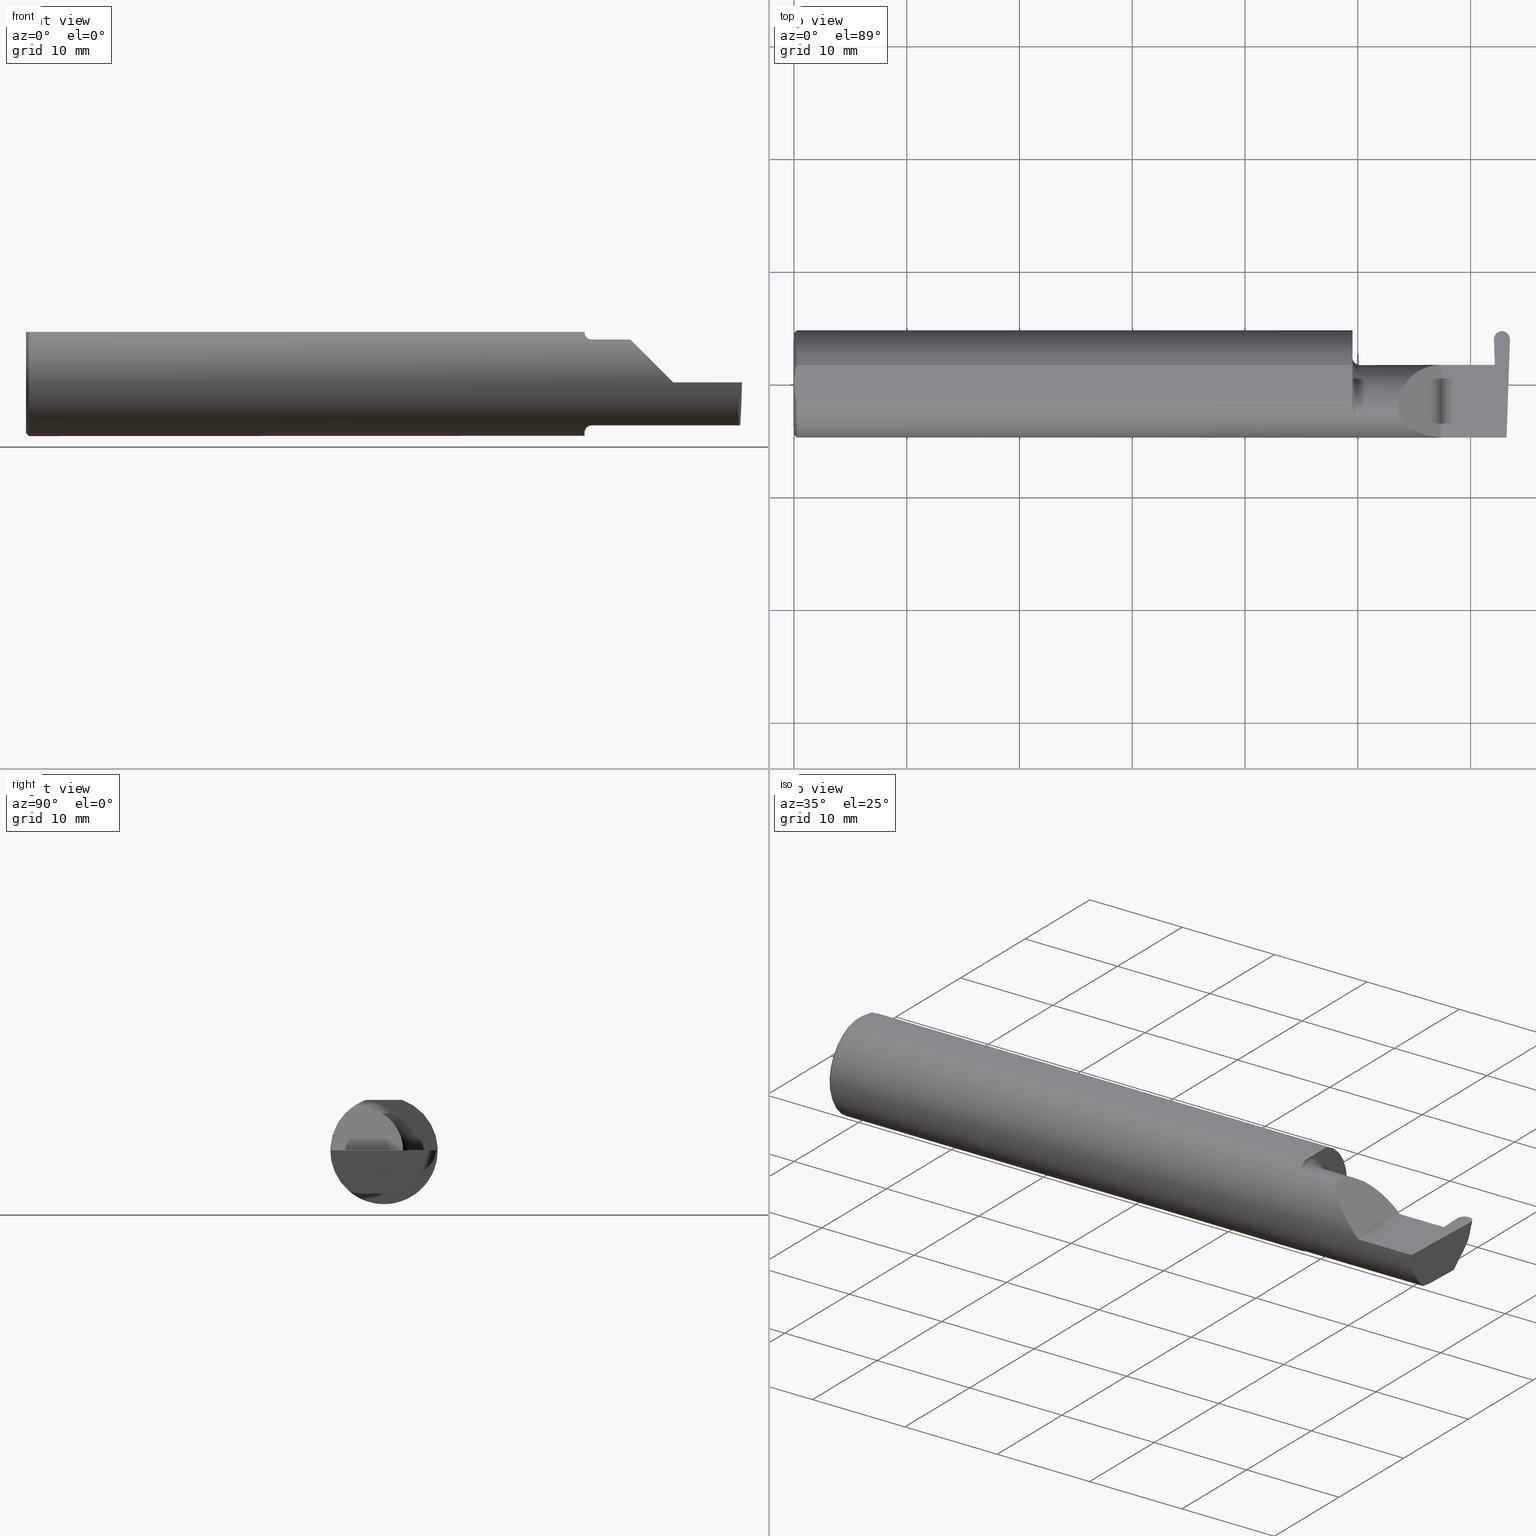
[diagram: canonical four-view strip — front | top / right | iso, engineering-drawing reading convention]
A machine part, canonical four-view strip (front | top / right | iso — engineering-drawing reading convention). The complete STEP part file that produces these views, byte-faithful:
ISO-10303-21;
HEADER;
FILE_DESCRIPTION (( 'STEP AP203' ),
    '1' );
FILE_NAME ('222140-GFR055-8.STEP',
    '2024-06-26T18:54:49',
    ( '' ),
    ( '' ),
    'SwSTEP 2.0',
    'SolidWorks 2024',
    '' );
FILE_SCHEMA (( 'CONFIG_CONTROL_DESIGN' ));
ENDSEC;

DATA;
#1 = APPROVAL_PERSON_ORGANIZATION ( #146, #490, #431 ) ;
#2 = CARTESIAN_POINT ( 'NONE',  ( 2.499950392650356346, 0.1545085540790380740, 0.0003624150208497695482 ) ) ;
#3 = ORIENTED_EDGE ( 'NONE', *, *, #486, .T. ) ;
#4 = CARTESIAN_POINT ( 'NONE',  ( 0.009999999999999346217, 0.000000000000000000, -0.1873499999999999888 ) ) ;
#5 = CARTESIAN_POINT ( 'NONE',  ( 0.000000000000000000, 0.000000000000000000, 0.000000000000000000 ) ) ;
#6 = ORIENTED_EDGE ( 'NONE', *, *, #413, .F. ) ;
#7 =( BOUNDED_CURVE ( )  B_SPLINE_CURVE ( 3, ( #456, #91, #196, #365 ),
 .UNSPECIFIED., .F., .F. ) 
 B_SPLINE_CURVE_WITH_KNOTS ( ( 4, 4 ),
 ( 0.8789888184544277783, 1.107026853503870978 ),
 .UNSPECIFIED. ) 
 CURVE ( )  GEOMETRIC_REPRESENTATION_ITEM ( )  RATIONAL_B_SPLINE_CURVE ( ( 1.000000000000000000, 0.9956712472009929815, 0.9956712472009929815, 1.000000000000000000 ) ) 
 REPRESENTATION_ITEM ( '' )  );
#8 = DIRECTION ( 'NONE',  ( 0.000000000000000000, 0.000000000000000000, 1.000000000000000000 ) ) ;
#9 = CC_DESIGN_APPROVAL ( #223, ( #697 ) ) ;
#10 = ORIENTED_EDGE ( 'NONE', *, *, #368, .T. ) ;
#11 = AXIS2_PLACEMENT_3D ( 'NONE', #137, #361, #679 ) ;
#12 = CARTESIAN_POINT ( 'NONE',  ( 2.472196486352602030, 0.1846500000000000363, 0.000000000000000000 ) ) ;
#13 = EDGE_LOOP ( 'NONE', ( #333, #259, #705, #136 ) ) ;
#14 = EDGE_CURVE ( 'NONE', #537, #219, #337, .T. ) ;
#15 = CARTESIAN_POINT ( 'NONE',  ( 2.471950000000000536, 0.1818703299733204493, -0.008554944679891261436 ) ) ;
#16 = CARTESIAN_POINT ( 'NONE',  ( 2.471950000000000536, 0.1722830110551551719, -0.03802004048799439290 ) ) ;
#17 = ORIENTED_EDGE ( 'NONE', *, *, #543, .F. ) ;
#18 = EDGE_CURVE ( 'NONE', #534, #537, #34, .T. ) ;
#19 = CARTESIAN_POINT ( 'NONE',  ( 2.496474746315712423, 0.1068850723125631674, -0.1034179792305871259 ) ) ;
#20 = ORIENTED_EDGE ( 'NONE', *, *, #251, .T. ) ;
#21 = AXIS2_PLACEMENT_3D ( 'NONE', #608, #399, #500 ) ;
#22 = CONICAL_SURFACE ( 'NONE', #693, 0.1773500000000005072, 0.7853981633974551624 ) ;
#23 = ORGANIZATION ( 'UNSPECIFIED', 'UNSPECIFIED', '' ) ;
#24 = DIRECTION ( 'NONE',  ( 1.000000000000000000, 0.000000000000000000, -0.000000000000000000 ) ) ;
#25 = CARTESIAN_POINT ( 'NONE',  ( 2.455608802696932713, 0.1715101730526972790, -0.03879287849045226499 ) ) ;
#26 = SECURITY_CLASSIFICATION_LEVEL ( 'unclassified' ) ;
#27 = CARTESIAN_POINT ( 'NONE',  ( 1.949999999999999956, -0.06851976604679065053, -0.1743704796142198643 ) ) ;
#28 = ADVANCED_FACE ( 'NONE', ( #454 ), #327, .T. ) ;
#29 = VERTEX_POINT ( 'NONE', #553 ) ;
#30 = CARTESIAN_POINT ( 'NONE',  ( 1.951829077486400221, -0.08839624499054647699, 0.1652742498708037466 ) ) ;
#31 = CARTESIAN_POINT ( 'NONE',  ( 2.202189699843948301, -0.1873500000000000443, 0.05781030015605120170 ) ) ;
#32 = CC_DESIGN_PERSON_AND_ORGANIZATION_ASSIGNMENT ( #260, #203, ( #701 ) ) ;
#33 = ORIENTED_EDGE ( 'NONE', *, *, #119, .T. ) ;
#34 =( BOUNDED_CURVE ( )  B_SPLINE_CURVE ( 3, ( #498, #235, #672, #445 ),
 .UNSPECIFIED., .F., .T. ) 
 B_SPLINE_CURVE_WITH_KNOTS ( ( 4, 4 ),
 ( 6.199081184676152212, 7.797674339294876411 ),
 .UNSPECIFIED. ) 
 CURVE ( )  GEOMETRIC_REPRESENTATION_ITEM ( )  RATIONAL_B_SPLINE_CURVE ( ( 1.000000000000000000, 0.7981407609938082626, 0.7981407609938082626, 1.000000000000000000 ) ) 
 REPRESENTATION_ITEM ( '' )  );
#35 = CARTESIAN_POINT ( 'NONE',  ( 1.965004157323697598, -0.1137044537483316436, 0.1489098419202428414 ) ) ;
#36 = DIRECTION ( 'NONE',  ( 0.01806679408117481400, 0.000000000000000000, -0.9998367821557817559 ) ) ;
#37 = ORIENTED_EDGE ( 'NONE', *, *, #299, .F. ) ;
#38 = DIRECTION ( 'NONE',  ( 1.000000000000000000, 3.456985211662611914E-17, 0.000000000000000000 ) ) ;
#39 = CARTESIAN_POINT ( 'NONE',  ( 2.113883229301068312, -0.1172600179964003175, 0.1461167706989304760 ) ) ;
#40 = VERTEX_POINT ( 'NONE', #665 ) ;
#41 = EDGE_CURVE ( 'NONE', #509, #106, #103, .T. ) ;
#42 = DIRECTION ( 'NONE',  ( 1.000000000000000000, 0.000000000000000000, 0.000000000000000000 ) ) ;
#43 = DIRECTION ( 'NONE',  ( 0.000000000000000000, -0.3090169943749481729, -0.9510565162951533091 ) ) ;
#44 = ORIENTED_EDGE ( 'NONE', *, *, #583, .F. ) ;
#45 = AXIS2_PLACEMENT_3D ( 'NONE', #234, #630, #189 ) ;
#46 = LINE ( 'NONE', #82, #481 ) ;
#47 = ORIENTED_EDGE ( 'NONE', *, *, #165, .T. ) ;
#48 = CARTESIAN_POINT ( 'NONE',  ( 2.443917087302114766, 0.1556210691174950977, 0.000000000000000000 ) ) ;
#49 = DIRECTION ( 'NONE',  ( -0.000000000000000000, 1.000000000000000000, -0.000000000000000000 ) ) ;
#50 = ORIENTED_EDGE ( 'NONE', *, *, #257, .T. ) ;
#51 = DIRECTION ( 'NONE',  ( 0.000000000000000000, 0.000000000000000000, -1.000000000000000000 ) ) ;
#52 = LINE ( 'NONE', #478, #658 ) ;
#53 = ORIENTED_EDGE ( 'NONE', *, *, #188, .T. ) ;
#54 = DATE_AND_TIME ( #96, #530 ) ;
#55 = DIRECTION ( 'NONE',  ( 0.000000000000000000, 0.000000000000000000, -1.000000000000000000 ) ) ;
#56 = ORIENTED_EDGE ( 'NONE', *, *, #347, .T. ) ;
#57 = EDGE_CURVE ( 'NONE', #606, #641, #168, .T. ) ;
#58 =( NAMED_UNIT ( * ) PLANE_ANGLE_UNIT ( ) SI_UNIT ( $, .RADIAN. ) );
#59 = CARTESIAN_POINT ( 'NONE',  ( 1.974999999999999867, -0.1172600179964006784, 0.1461167706989303650 ) ) ;
#60 = ORIENTED_EDGE ( 'NONE', *, *, #236, .T. ) ;
#61 = PERSON_AND_ORGANIZATION_ROLE ( 'classification_officer' ) ;
#62 = EDGE_CURVE ( 'NONE', #40, #501, #559, .T. ) ;
#63 = FACE_OUTER_BOUND ( 'NONE', #479, .T. ) ;
#64 = ORIENTED_EDGE ( 'NONE', *, *, #18, .F. ) ;
#65 = CARTESIAN_POINT ( 'NONE',  ( 2.447024025498200750, 0.06664999999999991764, 0.000000000000000000 ) ) ;
#66 = CARTESIAN_POINT ( 'NONE',  ( 2.488291197303068802, 0.1715101730526979174, -0.03879287849045171682 ) ) ;
#67 = AXIS2_PLACEMENT_3D ( 'NONE', #206, #369, #535 ) ;
#68 = DIRECTION ( 'NONE',  ( 1.000000000000000000, 0.000000000000000000, -0.000000000000000000 ) ) ;
#69 = ORIENTED_EDGE ( 'NONE', *, *, #342, .F. ) ;
#70 = EDGE_CURVE ( 'NONE', #476, #110, #95, .T. ) ;
#71 = CARTESIAN_POINT ( 'NONE',  ( 0.001616639753276218755, 0.03405189565400963680, 0.1763499999999999235 ) ) ;
#72 = ORIENTED_EDGE ( 'NONE', *, *, #694, .T. ) ;
#73 = FACE_OUTER_BOUND ( 'NONE', #595, .T. ) ;
#74 = CARTESIAN_POINT ( 'NONE',  ( 2.446346361333295416, 0.1274799371216592259, -0.08282311442149087322 ) ) ;
#75 = DATE_TIME_ROLE ( 'creation_date' ) ;
#76 = CARTESIAN_POINT ( 'NONE',  ( 2.471950000000000536, 0.1818703299733204493, -0.008554944679891261436 ) ) ;
#77 = ORIENTED_EDGE ( 'NONE', *, *, #241, .T. ) ;
#78 = CARTESIAN_POINT ( 'NONE',  ( 0.000000000000000000, 0.000000000000000000, -0.1773500000000005072 ) ) ;
#79 = ORIENTED_EDGE ( 'NONE', *, *, #295, .F. ) ;
#80 = CALENDAR_DATE ( 2024, 26, 6 ) ;
#81 = CARTESIAN_POINT ( 'NONE',  ( 1.972161949849307927, -0.1172600179964061184, 0.1461167706989260073 ) ) ;
#82 = CARTESIAN_POINT ( 'NONE',  ( 2.733184360054361939, -0.08335000000000006293, -0.1500000000000000500 ) ) ;
#83 = EDGE_LOOP ( 'NONE', ( #198, #657, #366, #229 ) ) ;
#84 = VECTOR ( 'NONE', #175, 39.37007874015748143 ) ;
#85 = VECTOR ( 'NONE', #417, 39.37007874015748143 ) ;
#86 = AXIS2_PLACEMENT_3D ( 'NONE', #226, #338, #442 ) ;
#87 = CC_DESIGN_APPROVAL ( #490, ( #701 ) ) ;
#88 = DIRECTION ( 'NONE',  ( 0.000000000000000000, 0.000000000000000000, -1.000000000000000000 ) ) ;
#89 = EDGE_LOOP ( 'NONE', ( #307, #426, #451, #156, #406 ) ) ;
#90 = CARTESIAN_POINT ( 'NONE',  ( 2.486959146249366537, -0.1623470442677541203, -0.1099340280425339100 ) ) ;
#91 = CARTESIAN_POINT ( 'NONE',  ( 2.488245243745037527, -0.1061291577212408743, -0.1486999626928446339 ) ) ;
#92 = ORIENTED_EDGE ( 'NONE', *, *, #57, .F. ) ;
#93 = CARTESIAN_POINT ( 'NONE',  ( 1.949999999999999956, 0.06655862405286420980, -0.005234924505380325437 ) ) ;
#94 = ORIENTED_EDGE ( 'NONE', *, *, #648, .T. ) ;
#95 = CIRCLE ( 'NONE', #182, 0.1873499999999999888 ) ;
#96 = CALENDAR_DATE ( 2024, 26, 6 ) ;
#97 = ADVANCED_FACE ( 'NONE', ( #611 ), #120, .F. ) ;
#98 = AXIS2_PLACEMENT_3D ( 'NONE', #589, #99, #204 ) ;
#99 = DIRECTION ( 'NONE',  ( -1.000000000000000000, -3.456985211662611914E-17, -0.000000000000000000 ) ) ;
#100 = EDGE_LOOP ( 'NONE', ( #69, #637, #186, #212, #272, #44, #629, #582, #72, #378, #411, #191, #586 ) ) ;
#101 = DIRECTION ( 'NONE',  ( -3.456985211662611914E-17, 1.000000000000000000, 0.000000000000000000 ) ) ;
#102 = ORIENTED_EDGE ( 'NONE', *, *, #236, .F. ) ;
#103 =( BOUNDED_CURVE ( )  B_SPLINE_CURVE ( 3, ( #122, #283, #496, #222 ),
 .UNSPECIFIED., .F., .F. ) 
 B_SPLINE_CURVE_WITH_KNOTS ( ( 4, 4 ),
 ( 3.159045946109734437, 4.694935687864696838 ),
 .UNSPECIFIED. ) 
 CURVE ( )  GEOMETRIC_REPRESENTATION_ITEM ( )  RATIONAL_B_SPLINE_CURVE ( ( 1.000000000000000000, 0.8128932002257782674, 0.8128932002257782674, 1.000000000000000000 ) ) 
 REPRESENTATION_ITEM ( '' )  );
#104 = DIRECTION ( 'NONE',  ( 1.000000000000000000, 0.000000000000000000, 0.000000000000000000 ) ) ;
#105 = DIRECTION ( 'NONE',  ( -0.01806954526206910883, 0.01744955702544858864, 0.9996844524616943506 ) ) ;
#106 = VERTEX_POINT ( 'NONE', #171 ) ;
#107 = APPROVAL_PERSON_ORGANIZATION ( #683, #223, #604 ) ;
#108 = DIRECTION ( 'NONE',  ( -1.000000000000000000, 0.000000000000000000, 1.224646799147353947E-16 ) ) ;
#109 = LINE ( 'NONE', #161, #218 ) ;
#110 = VERTEX_POINT ( 'NONE', #395 ) ;
#111 = APPROVAL_PERSON_ORGANIZATION ( #438, #115, #278 ) ;
#112 = EDGE_CURVE ( 'NONE', #219, #606, #245, .T. ) ;
#113 = CARTESIAN_POINT ( 'NONE',  ( 1.949999999999999956, 0.1873499999999998222, 0.1763499999999999235 ) ) ;
#114 = EDGE_LOOP ( 'NONE', ( #311, #253, #363, #3 ) ) ;
#115 = APPROVAL ( #297, 'UNSPECIFIED' ) ;
#116 = EDGE_CURVE ( 'NONE', #529, #164, #634, .T. ) ;
#117 = DIRECTION ( 'NONE',  ( -1.000000000000000000, -0.000000000000000000, -0.000000000000000000 ) ) ;
#118 = CARTESIAN_POINT ( 'NONE',  ( 2.449781798287666845, -0.08334999999999999354, -0.1500000000000000500 ) ) ;
#119 = EDGE_CURVE ( 'NONE', #208, #598, #631, .T. ) ;
#120 = PLANE ( 'NONE',  #480 ) ;
#121 = CARTESIAN_POINT ( 'NONE',  ( 0.000000000000000000, 0.01880691362239451242, 0.1763499999999999235 ) ) ;
#122 = CARTESIAN_POINT ( 'NONE',  ( 2.449781798287666845, -0.08334999999999999354, -0.1500000000000000500 ) ) ;
#123 = ORIENTED_EDGE ( 'NONE', *, *, #18, .T. ) ;
#124 = PLANE ( 'NONE',  #317 ) ;
#125 = EDGE_CURVE ( 'NONE', #625, #201, #190, .T. ) ;
#126 = ORIENTED_EDGE ( 'NONE', *, *, #112, .F. ) ;
#127 = PERSON_AND_ORGANIZATION ( #210, #23 ) ;
#128 = AXIS2_PLACEMENT_3D ( 'NONE', #644, #700, #421 ) ;
#129 = ADVANCED_FACE ( 'NONE', ( #471 ), #141, .T. ) ;
#130 = CARTESIAN_POINT ( 'NONE',  ( 0.000000000000000000, 0.01880691362239451242, 0.1763499999999999235 ) ) ;
#131 = CARTESIAN_POINT ( 'NONE',  ( 0.000000000000000000, 0.000000000000000000, 0.000000000000000000 ) ) ;
#132 = DATE_AND_TIME ( #570, #360 ) ;
#133 = CC_DESIGN_PERSON_AND_ORGANIZATION_ASSIGNMENT ( #127, #660, ( #670 ) ) ;
#134 = CARTESIAN_POINT ( 'NONE',  ( 1.950358271039143165, -0.07873626113568077400, -0.1700887912276895508 ) ) ;
#135 = CARTESIAN_POINT ( 'NONE',  ( 2.470340804352568753, 0.1370935646770005678, -0.05575375471034092756 ) ) ;
#136 = ORIENTED_EDGE ( 'NONE', *, *, #642, .F. ) ;
#137 = CARTESIAN_POINT ( 'NONE',  ( 1.949999999999999956, 0.1873499999999999055, 0.000000000000000000 ) ) ;
#138 = CARTESIAN_POINT ( 'NONE',  ( 2.449666718533190846, 0.06409798100084941608, -0.1462050705423014185 ) ) ;
#139 = VERTEX_POINT ( 'NONE', #138 ) ;
#140 = FACE_OUTER_BOUND ( 'NONE', #522, .T. ) ;
#141 = CYLINDRICAL_SURFACE ( 'NONE', #356, 0.02799999999999998671 ) ;
#142 = ORIENTED_EDGE ( 'NONE', *, *, #202, .F. ) ;
#143 = CARTESIAN_POINT ( 'NONE',  ( 1.956304331342286762, -0.1022198306720689676, -0.1570962426853819427 ) ) ;
#144 = CARTESIAN_POINT ( 'NONE',  ( 2.499982912697886750, 0.1556210691174950700, 0.000000000000000000 ) ) ;
#145 = ORIENTED_EDGE ( 'NONE', *, *, #62, .F. ) ;
#146 = PERSON_AND_ORGANIZATION ( #210, #23 ) ;
#147 = CARTESIAN_POINT ( 'NONE',  ( 2.489315391880043915, -0.07483390797619576817, -0.1500000000000000500 ) ) ;
#148 = ORIENTED_EDGE ( 'NONE', *, *, #197, .T. ) ;
#149 = ADVANCED_FACE ( 'NONE', ( #355 ), #22, .T. ) ;
#150 = CARTESIAN_POINT ( 'NONE',  ( 0.009999999999999346217, 0.000000000000000000, 0.000000000000000000 ) ) ;
#151 = AXIS2_PLACEMENT_3D ( 'NONE', #379, #599, #588 ) ;
#152 = FACE_OUTER_BOUND ( 'NONE', #83, .T. ) ;
#153 = EDGE_LOOP ( 'NONE', ( #518, #123, #320, #370, #437, #102, #17, #666, #489 ) ) ;
#154 = DIRECTION ( 'NONE',  ( -1.000000000000000000, -0.000000000000000000, -0.000000000000000000 ) ) ;
#155 = ADVANCED_FACE ( 'NONE', ( #467 ), #349, .F. ) ;
#156 = ORIENTED_EDGE ( 'NONE', *, *, #409, .T. ) ;
#157 = DIRECTION ( 'NONE',  ( 0.9992386149554828290, 0.03489418134010773692, 0.01745240643728358798 ) ) ;
#158 = CARTESIAN_POINT ( 'NONE',  ( 0.000000000000000000, -0.01880691362239451242, 0.1763499999999999235 ) ) ;
#159 = ADVANCED_FACE ( 'NONE', ( #405 ), #252, .F. ) ;
#160 = ORIENTED_EDGE ( 'NONE', *, *, #57, .T. ) ;
#161 = CARTESIAN_POINT ( 'NONE',  ( 2.470340804352568309, 0.1637231471332648569, -0.06440623055283947740 ) ) ;
#162 = ORIENTED_EDGE ( 'NONE', *, *, #281, .T. ) ;
#163 = CARTESIAN_POINT ( 'NONE',  ( 2.443960049305725857, 0.1543907983005533280, 0.000000000000000000 ) ) ;
#164 = VERTEX_POINT ( 'NONE', #696 ) ;
#165 = EDGE_CURVE ( 'NONE', #430, #457, #352, .T. ) ;
#166 = CARTESIAN_POINT ( 'NONE',  ( 2.497553638666705655, 0.1274799371216592259, -0.08282311442149083158 ) ) ;
#167 = ORIENTED_EDGE ( 'NONE', *, *, #368, .F. ) ;
#168 =( BOUNDED_CURVE ( )  B_SPLINE_CURVE ( 3, ( #16, #66, #443, #166 ),
 .UNSPECIFIED., .F., .T. ) 
 B_SPLINE_CURVE_WITH_KNOTS ( ( 4, 4 ),
 ( 3.157953889688667193, 4.726229945297544255 ),
 .UNSPECIFIED. ) 
 CURVE ( )  GEOMETRIC_REPRESENTATION_ITEM ( )  RATIONAL_B_SPLINE_CURVE ( ( 1.000000000000000000, 0.8053315133011027527, 0.8053315133011027527, 1.000000000000000000 ) ) 
 REPRESENTATION_ITEM ( '' )  );
#169 = CARTESIAN_POINT ( 'NONE',  ( 2.472196486352602030, 0.1846500000000000363, 0.000000000000000000 ) ) ;
#170 = VECTOR ( 'NONE', #325, 39.37007874015748143 ) ;
#171 = CARTESIAN_POINT ( 'NONE',  ( 2.447118648061411772, 0.06655862405286416816, -0.005234924505382331644 ) ) ;
#172 = VECTOR ( 'NONE', #261, 39.37007874015748143 ) ;
#173 = VECTOR ( 'NONE', #401, 39.37007874015748854 ) ;
#174 = CARTESIAN_POINT ( 'NONE',  ( 0.005155213631852355663, 0.04890080824240217866, 0.1763499999999999235 ) ) ;
#175 = DIRECTION ( 'NONE',  ( 1.000000000000000000, -0.000000000000000000, -0.000000000000000000 ) ) ;
#176 = DIRECTION ( 'NONE',  ( 1.000000000000000000, -0.000000000000000000, -0.000000000000000000 ) ) ;
#177 = ORIENTED_EDGE ( 'NONE', *, *, #347, .F. ) ;
#178 = EDGE_CURVE ( 'NONE', #40, #139, #689, .T. ) ;
#179 = COORDINATED_UNIVERSAL_TIME_OFFSET ( 8, 0, .BEHIND. ) ;
#180 = PLANE ( 'NONE',  #269 ) ;
#181 = CARTESIAN_POINT ( 'NONE',  ( 2.113883229301068312, -0.1172600179964003175, 0.1461167706989304760 ) ) ;
#182 = AXIS2_PLACEMENT_3D ( 'NONE', #668, #563, #290 ) ;
#183 = DESIGN_CONTEXT ( 'detailed design', #526, 'design' ) ;
#184 = CARTESIAN_POINT ( 'NONE',  ( 2.437903374698175529, 0.06664999999999991764, 0.000000000000000000 ) ) ;
#185 = CARTESIAN_POINT ( 'NONE',  ( -0.001039370078740541395, 0.1846500000000000363, 0.000000000000000000 ) ) ;
#186 = ORIENTED_EDGE ( 'NONE', *, *, #543, .T. ) ;
#187 = COORDINATED_UNIVERSAL_TIME_OFFSET ( 8, 0, .BEHIND. ) ;
#188 = EDGE_CURVE ( 'NONE', #164, #208, #461, .T. ) ;
#189 = DIRECTION ( 'NONE',  ( 0.000000000000000000, -1.000000000000000000, 0.000000000000000000 ) ) ;
#190 = LINE ( 'NONE', #144, #574 ) ;
#191 = ORIENTED_EDGE ( 'NONE', *, *, #568, .F. ) ;
#192 = CARTESIAN_POINT ( 'NONE',  ( 1.956287624083520305, -0.1021858045380145824, 0.1571187174372875861 ) ) ;
#193 = CARTESIAN_POINT ( 'NONE',  ( 2.155331797197863608, 0.06665000000000002867, 0.1046682028021359151 ) ) ;
#194 = ORIENTED_EDGE ( 'NONE', *, *, #288, .T. ) ;
#195 = LINE ( 'NONE', #408, #439 ) ;
#196 = CARTESIAN_POINT ( 'NONE',  ( 2.488618975064261996, -0.09477667630339420279, -0.1500000000000000500 ) ) ;
#197 = EDGE_CURVE ( 'NONE', #346, #331, #7, .T. ) ;
#198 = ORIENTED_EDGE ( 'NONE', *, *, #583, .T. ) ;
#199 = APPROVAL_STATUS ( 'not_yet_approved' ) ;
#200 = CARTESIAN_POINT ( 'NONE',  ( 0.000000000000000000, -0.01880691362239451242, 0.1763499999999999235 ) ) ;
#201 = VERTEX_POINT ( 'NONE', #585 ) ;
#202 = EDGE_CURVE ( 'NONE', #106, #29, #410, .T. ) ;
#203 = PERSON_AND_ORGANIZATION_ROLE ( 'creator' ) ;
#204 = DIRECTION ( 'NONE',  ( 3.456985211662611914E-17, -1.000000000000000000, 0.000000000000000000 ) ) ;
#205 = VERTEX_POINT ( 'NONE', #528 ) ;
#206 = CARTESIAN_POINT ( 'NONE',  ( 0.000000000000000000, 0.000000000000000000, 0.000000000000000000 ) ) ;
#207 = CARTESIAN_POINT ( 'NONE',  ( 2.443917087302114766, 0.1556210691174950977, 0.000000000000000000 ) ) ;
#208 = VERTEX_POINT ( 'NONE', #624 ) ;
#209 = EDGE_CURVE ( 'NONE', #331, #509, #46, .T. ) ;
#210 = PERSON ( 'UNSPECIFIED', 'UNSPECIFIED', 'UNSPECIFIED', ('UNSPECIFIED'), ('UNSPECIFIED'), ('UNSPECIFIED') ) ;
#211 = DIRECTION ( 'NONE',  ( -1.000000000000000000, -3.456985211662611914E-17, -0.000000000000000000 ) ) ;
#212 = ORIENTED_EDGE ( 'NONE', *, *, #116, .T. ) ;
#213 = DIRECTION ( 'NONE',  ( -1.224646799147353947E-16, 0.000000000000000000, -1.000000000000000000 ) ) ;
#214 = DIRECTION ( 'NONE',  ( -1.000000000000000000, -0.000000000000000000, -0.000000000000000000 ) ) ;
#215 = PRODUCT_DEFINITION_SHAPE ( 'NONE', 'NONE',  #701 ) ;
#216 = ORIENTED_EDGE ( 'NONE', *, *, #197, .F. ) ;
#217 = CARTESIAN_POINT ( 'NONE',  ( 2.471950000000000536, 0.1722830110551551719, -0.03802004048799439290 ) ) ;
#218 = VECTOR ( 'NONE', #276, 39.37007874015748143 ) ;
#219 = VERTEX_POINT ( 'NONE', #621 ) ;
#220 = ADVANCED_FACE ( 'NONE', ( #300 ), #303, .F. ) ;
#221 = CARTESIAN_POINT ( 'NONE',  ( 2.499939950694276103, 0.1543907983005533280, 0.000000000000000000 ) ) ;
#222 = CARTESIAN_POINT ( 'NONE',  ( 2.447118648061411772, 0.06655862405286416816, -0.005234924505382331644 ) ) ;
#223 = APPROVAL ( #510, 'UNSPECIFIED' ) ;
#224 = LINE ( 'NONE', #504, #659 ) ;
#225 = DIRECTION ( 'NONE',  ( 0.000000000000000000, -0.7071067811865433539, -0.7071067811865515695 ) ) ;
#226 = CARTESIAN_POINT ( 'NONE',  ( 0.000000000000000000, 0.000000000000000000, 0.000000000000000000 ) ) ;
#227 = VECTOR ( 'NONE', #391, 39.37007874015748854 ) ;
#228 = AXIS2_PLACEMENT_3D ( 'NONE', #271, #211, #330 ) ;
#229 = ORIENTED_EDGE ( 'NONE', *, *, #560, .F. ) ;
#230 = EDGE_LOOP ( 'NONE', ( #698, #304, #160, #601, #145, #485 ) ) ;
#231 = CARTESIAN_POINT ( 'NONE',  ( 2.447024025498200750, 0.06664999999999991764, 0.000000000000000000 ) ) ;
#232 = CARTESIAN_POINT ( 'NONE',  ( 2.471950000000000536, 0.1722830110551551719, -0.03802004048799439290 ) ) ;
#233 = DATE_TIME_ROLE ( 'classification_date' ) ;
#234 = CARTESIAN_POINT ( 'NONE',  ( 1.949999999999999956, -0.08335000000000000742, 0.000000000000000000 ) ) ;
#235 = CARTESIAN_POINT ( 'NONE',  ( 2.454931386279057826, 0.1846500000000000918, 2.084523217784548210E-18 ) ) ;
#236 = EDGE_CURVE ( 'NONE', #529, #208, #459, .T. ) ;
#237 = CARTESIAN_POINT ( 'NONE',  ( 1.958475602106621860, -0.1064978748893406074, 0.1542035505680383611 ) ) ;
#238 = DIRECTION ( 'NONE',  ( 0.000000000000000000, -0.01745240643728358451, -0.9998476951563912696 ) ) ;
#239 = CLOSED_SHELL ( 'NONE', ( #149, #159, #372, #382, #703, #519, #548, #28, #388, #419, #597, #450, #155, #97, #663, #638, #220, #129, #433 ) ) ;
#240 = ORIENTED_EDGE ( 'NONE', *, *, #622, .F. ) ;
#241 = EDGE_CURVE ( 'NONE', #501, #331, #265, .T. ) ;
#242 = AXIS2_PLACEMENT_3D ( 'NONE', #627, #38, #298 ) ;
#243 = CARTESIAN_POINT ( 'NONE',  ( 2.449781826481273406, -0.08343938758048997928, -0.1500000000000000500 ) ) ;
#244 = DIRECTION ( 'NONE',  ( -0.01299916717458325655, 0.7070470357949164564, 0.7070470357949245610 ) ) ;
#245 =( BOUNDED_CURVE ( )  B_SPLINE_CURVE ( 3, ( #74, #614, #25, #232 ),
 .UNSPECIFIED., .F., .T. ) 
 B_SPLINE_CURVE_WITH_KNOTS ( ( 4, 4 ),
 ( 4.698548015471835093, 6.266824071080692171 ),
 .UNSPECIFIED. ) 
 CURVE ( )  GEOMETRIC_REPRESENTATION_ITEM ( )  RATIONAL_B_SPLINE_CURVE ( ( 1.000000000000000000, 0.8053315133011074156, 0.8053315133011074156, 1.000000000000000000 ) ) 
 REPRESENTATION_ITEM ( '' )  );
#246 = ORIENTED_EDGE ( 'NONE', *, *, #251, .F. ) ;
#247 = CARTESIAN_POINT ( 'NONE',  ( 1.949999999999999956, -0.06851976604679065053, 0.1743704796142198643 ) ) ;
#248 = CARTESIAN_POINT ( 'NONE',  ( 1.949999999999999956, 0.06665000000000001479, 6.735557395310446214E-17 ) ) ;
#249 = VERTEX_POINT ( 'NONE', #377 ) ;
#250 = CARTESIAN_POINT ( 'NONE',  ( 1.950353553376444671, -0.07868116735658675642, 0.1701139256562800295 ) ) ;
#251 = EDGE_CURVE ( 'NONE', #506, #418, #109, .T. ) ;
#252 = PLANE ( 'NONE',  #554 ) ;
#253 = ORIENTED_EDGE ( 'NONE', *, *, #202, .T. ) ;
#254 = VECTOR ( 'NONE', #105, 39.37007874015748854 ) ;
#255 = CIRCLE ( 'NONE', #45, 0.1749999999999999889 ) ;
#256 = CARTESIAN_POINT ( 'NONE',  ( 2.497553638666705655, 0.1274799371216592259, -0.08282311442149083158 ) ) ;
#257 = EDGE_CURVE ( 'NONE', #641, #625, #596, .T. ) ;
#258 = DIRECTION ( 'NONE',  ( 0.000000000000000000, 0.9510565162951533091, -0.3090169943749483950 ) ) ;
#259 = ORIENTED_EDGE ( 'NONE', *, *, #513, .F. ) ;
#260 = PERSON_AND_ORGANIZATION ( #210, #23 ) ;
#261 = DIRECTION ( 'NONE',  ( -0.03489949670249509889, -0.9993908270190959842, 0.000000000000000000 ) ) ;
#262 = CC_DESIGN_PERSON_AND_ORGANIZATION_ASSIGNMENT ( #427, #321, ( #562 ) ) ;
#263 = ORIENTED_EDGE ( 'NONE', *, *, #587, .F. ) ;
#264 = DATE_AND_TIME ( #643, #428 ) ;
#265 = LINE ( 'NONE', #147, #172 ) ;
#266 = EDGE_LOOP ( 'NONE', ( #194, #541, #47, #341, #707, #177 ) ) ;
#267 = B_SPLINE_CURVE_WITH_KNOTS ( 'NONE', 3,
 ( #274, #332, #322, #200 ),
 .UNSPECIFIED., .F., .F.,
 ( 4, 4 ),
 ( 0.009771445421851449736, 0.01092787937989102981 ),
 .UNSPECIFIED. ) ;
#268 = AXIS2_PLACEMENT_3D ( 'NONE', #386, #214, #55 ) ;
#269 = AXIS2_PLACEMENT_3D ( 'NONE', #620, #348, #567 ) ;
#270 = VECTOR ( 'NONE', #571, 39.37007874015748143 ) ;
#271 = CARTESIAN_POINT ( 'NONE',  ( 1.974999999999999867, -0.08335000000000000742, 0.000000000000000000 ) ) ;
#272 = ORIENTED_EDGE ( 'NONE', *, *, #594, .F. ) ;
#273 =( CONVERSION_BASED_UNIT ( 'INCH', #375 ) LENGTH_UNIT ( ) NAMED_UNIT ( #505 ) );
#274 = CARTESIAN_POINT ( 'NONE',  ( 0.009999999999999346217, -0.06325108694718235836, 0.1763499999999999235 ) ) ;
#275 = ORIENTED_EDGE ( 'NONE', *, *, #209, .F. ) ;
#276 = DIRECTION ( 'NONE',  ( -0.02739170151060046909, -0.3089010440752013587, -0.9506996579664918068 ) ) ;
#277 = ORIENTED_EDGE ( 'NONE', *, *, #423, .T. ) ;
#278 = APPROVAL_ROLE ( '' ) ;
#279 = CYLINDRICAL_SURFACE ( 'NONE', #291, 0.02800000000000000405 ) ;
#280 = VECTOR ( 'NONE', #314, 39.37007874015748143 ) ;
#281 = EDGE_CURVE ( 'NONE', #296, #579, #600, .T. ) ;
#282 = AXIS2_PLACEMENT_3D ( 'NONE', #48, #157, #538 ) ;
#283 = CARTESIAN_POINT ( 'NONE',  ( 2.449754845031671291, 0.002105059811798303329, -0.1500000000000000500 ) ) ;
#284 = DIRECTION ( 'NONE',  ( -0.02739170151060045175, 0.3089010440752013587, 0.9506996579664920288 ) ) ;
#285 = ORIENTED_EDGE ( 'NONE', *, *, #241, .F. ) ;
#286 = LINE ( 'NONE', #231, #695 ) ;
#287 = EDGE_LOOP ( 'NONE', ( #690, #381, #653, #77 ) ) ;
#288 = EDGE_CURVE ( 'NONE', #205, #476, #52, .T. ) ;
#289 = CARTESIAN_POINT ( 'NONE',  ( 2.437811998751039599, 0.06655862405286415429, -0.005234924505382244041 ) ) ;
#290 = DIRECTION ( 'NONE',  ( 0.000000000000000000, 1.000000000000000000, 0.000000000000000000 ) ) ;
#291 = AXIS2_PLACEMENT_3D ( 'NONE', #440, #284, #491 ) ;
#292 = COORDINATED_UNIVERSAL_TIME_OFFSET ( 8, 0, .BEHIND. ) ;
#293 = CC_DESIGN_APPROVAL ( #115, ( #670 ) ) ;
#294 = LINE ( 'NONE', #243, #270 ) ;
#295 = EDGE_CURVE ( 'NONE', #633, #296, #576, .T. ) ;
#296 = VERTEX_POINT ( 'NONE', #158 ) ;
#297 = APPROVAL_STATUS ( 'not_yet_approved' ) ;
#298 = DIRECTION ( 'NONE',  ( 0.000000000000000000, 1.000000000000000000, 0.000000000000000000 ) ) ;
#299 = EDGE_CURVE ( 'NONE', #476, #430, #704, .T. ) ;
#300 = FACE_OUTER_BOUND ( 'NONE', #465, .T. ) ;
#301 = ORIENTED_EDGE ( 'NONE', *, *, #409, .F. ) ;
#302 = CARTESIAN_POINT ( 'NONE',  ( 1.974999999999999867, -0.1172600179964006784, 0.1461167706989303650 ) ) ;
#303 = PLANE ( 'NONE',  #493 ) ;
#304 = ORIENTED_EDGE ( 'NONE', *, *, #112, .T. ) ;
#305 = PLANE ( 'NONE',  #403 ) ;
#306 = CARTESIAN_POINT ( 'NONE',  ( 0.000000000000000000, 0.06325108694718235836, 0.1763499999999999235 ) ) ;
#307 = ORIENTED_EDGE ( 'NONE', *, *, #312, .T. ) ;
#308 = EDGE_CURVE ( 'NONE', #353, #249, #542, .T. ) ;
#309 = CARTESIAN_POINT ( 'NONE',  ( 2.486996401427643555, -0.1873500000000000443, -0.05781030015605125721 ) ) ;
#310 = CARTESIAN_POINT ( 'NONE',  ( 2.447024025498200750, 0.06664999999999991764, 0.000000000000000000 ) ) ;
#311 = ORIENTED_EDGE ( 'NONE', *, *, #552, .F. ) ;
#312 = EDGE_CURVE ( 'NONE', #422, #537, #706, .T. ) ;
#313 = MECHANICAL_CONTEXT ( 'NONE', #488, 'mechanical' ) ;
#314 = DIRECTION ( 'NONE',  ( -1.000000000000000000, -3.456985211662611914E-17, -0.000000000000000000 ) ) ;
#315 = EDGE_LOOP ( 'NONE', ( #20, #10, #277 ) ) ;
#316 = TOROIDAL_SURFACE ( 'NONE', #98, 0.1749999999999999889, 0.02499999999999994588 ) ;
#317 = AXIS2_PLACEMENT_3D ( 'NONE', #613, #8, #24 ) ;
#318 = COORDINATED_UNIVERSAL_TIME_OFFSET ( 8, 0, .BEHIND. ) ;
#319 = PLANE ( 'NONE',  #128 ) ;
#320 = ORIENTED_EDGE ( 'NONE', *, *, #312, .F. ) ;
#321 = PERSON_AND_ORGANIZATION_ROLE ( 'design_owner' ) ;
#322 = CARTESIAN_POINT ( 'NONE',  ( 0.001595548104417217512, -0.03385300050298979679, 0.1763499999999999235 ) ) ;
#323 = ORIENTED_EDGE ( 'NONE', *, *, #436, .F. ) ;
#324 = CARTESIAN_POINT ( 'NONE',  ( 1.949999999999999956, -0.06851976604679065053, -0.1743704796142198643 ) ) ;
#325 = DIRECTION ( 'NONE',  ( -0.000000000000000000, 1.000000000000000000, -0.000000000000000000 ) ) ;
#326 = ORIENTED_EDGE ( 'NONE', *, *, #527, .F. ) ;
#327 = CONICAL_SURFACE ( 'NONE', #21, 0.1773500000000005072, 0.7853981633974551624 ) ;
#328 = VECTOR ( 'NONE', #432, 39.37007874015748854 ) ;
#329 = CARTESIAN_POINT ( 'NONE',  ( 2.500000000000000000, -0.2500000000000000555, 0.000000000000000000 ) ) ;
#330 = DIRECTION ( 'NONE',  ( 0.000000000000000000, -1.000000000000000000, 0.000000000000000000 ) ) ;
#331 = VERTEX_POINT ( 'NONE', #640 ) ;
#332 = CARTESIAN_POINT ( 'NONE',  ( 0.005151108632379595466, -0.04888864921576189376, 0.1763499999999999235 ) ) ;
#333 = ORIENTED_EDGE ( 'NONE', *, *, #648, .F. ) ;
#334 = PERSON_AND_ORGANIZATION ( #210, #23 ) ;
#335 = EDGE_CURVE ( 'NONE', #139, #219, #655, .T. ) ;
#336 = CARTESIAN_POINT ( 'NONE',  ( 2.488968613720943246, 0.1846500000000000641, -2.084523217784549751E-18 ) ) ;
#337 = LINE ( 'NONE', #675, #227 ) ;
#338 = DIRECTION ( 'NONE',  ( -1.000000000000000000, -0.000000000000000000, -0.000000000000000000 ) ) ;
#339 = ORIENTED_EDGE ( 'NONE', *, *, #694, .F. ) ;
#340 = DIRECTION ( 'NONE',  ( 0.000000000000000000, -1.000000000000000000, 0.000000000000000000 ) ) ;
#341 = ORIENTED_EDGE ( 'NONE', *, *, #462, .F. ) ;
#342 = EDGE_CURVE ( 'NONE', #346, #249, #533, .T. ) ;
#343 = CARTESIAN_POINT ( 'NONE',  ( 0.009999999999999346217, 0.06325108694718235836, 0.1763499999999999235 ) ) ;
#344 = CARTESIAN_POINT ( 'NONE',  ( 2.471703513647399486, 0.1846500000000000363, 0.000000000000000000 ) ) ;
#345 = AXIS2_PLACEMENT_3D ( 'NONE', #5, #154, #373 ) ;
#346 = VERTEX_POINT ( 'NONE', #435 ) ;
#347 = EDGE_CURVE ( 'NONE', #205, #296, #267, .T. ) ;
#348 = DIRECTION ( 'NONE',  ( -0.9992386149554828290, 0.03489418134010779937, 0.01745240643728358798 ) ) ;
#349 = PLANE ( 'NONE',  #656 ) ;
#350 = DATE_AND_TIME ( #80, #565 ) ;
#351 = CARTESIAN_POINT ( 'NONE',  ( 1.969511795768554396, -0.1163687266324233555, -0.1468371510166789906 ) ) ;
#352 = LINE ( 'NONE', #306, #85 ) ;
#353 = VERTEX_POINT ( 'NONE', #59 ) ;
#354 = LINE ( 'NONE', #520, #173 ) ;
#355 = FACE_OUTER_BOUND ( 'NONE', #678, .T. ) ;
#356 = AXIS2_PLACEMENT_3D ( 'NONE', #135, #362, #258 ) ;
#357 = VECTOR ( 'NONE', #244, 39.37007874015748143 ) ;
#358 = ORIENTED_EDGE ( 'NONE', *, *, #560, .T. ) ;
#359 =( GEOMETRIC_REPRESENTATION_CONTEXT ( 3 ) GLOBAL_UNCERTAINTY_ASSIGNED_CONTEXT ( ( #515 ) ) GLOBAL_UNIT_ASSIGNED_CONTEXT ( ( #273, #58, #371 ) ) REPRESENTATION_CONTEXT ( 'NONE', 'WORKASPACE' ) );
#360 = LOCAL_TIME ( 11, 54, 49.00000000000000000, #187 ) ;
#361 = DIRECTION ( 'NONE',  ( 1.000000000000000000, 3.456985211662611914E-17, 0.000000000000000000 ) ) ;
#362 = DIRECTION ( 'NONE',  ( -0.02739170151060047256, -0.3089010440752013587, -0.9506996579664920288 ) ) ;
#363 = ORIENTED_EDGE ( 'NONE', *, *, #436, .T. ) ;
#364 = CARTESIAN_POINT ( 'NONE',  ( 2.499939950694276103, 0.1543907983005533280, 0.000000000000000000 ) ) ;
#365 = CARTESIAN_POINT ( 'NONE',  ( 2.489018003393509648, -0.08335000000000006293, -0.1500000000000000500 ) ) ;
#366 = ORIENTED_EDGE ( 'NONE', *, *, #632, .T. ) ;
#367 = CC_DESIGN_DATE_AND_TIME_ASSIGNMENT ( #264, #75, ( #701 ) ) ;
#368 = EDGE_CURVE ( 'NONE', #418, #534, #475, .T. ) ;
#369 = DIRECTION ( 'NONE',  ( 0.000000000000000000, 0.000000000000000000, 1.000000000000000000 ) ) ;
#370 = ORIENTED_EDGE ( 'NONE', *, *, #486, .F. ) ;
#371 =( NAMED_UNIT ( * ) SI_UNIT ( $, .STERADIAN. ) SOLID_ANGLE_UNIT ( ) );
#372 = ADVANCED_FACE ( 'NONE', ( #549 ), #487, .T. ) ;
#373 = DIRECTION ( 'NONE',  ( 0.000000000000000000, 0.000000000000000000, 1.000000000000000000 ) ) ;
#374 = ORIENTED_EDGE ( 'NONE', *, *, #41, .T. ) ;
#375 = LENGTH_MEASURE_WITH_UNIT ( LENGTH_MEASURE( 0.02539999999999999897 ), #647 );
#376 = CC_DESIGN_DATE_AND_TIME_ASSIGNMENT ( #507, #233, ( #697 ) ) ;
#377 = CARTESIAN_POINT ( 'NONE',  ( 1.974999999999999867, -0.1172600179964005396, -0.1461167706989303927 ) ) ;
#378 = ORIENTED_EDGE ( 'NONE', *, *, #642, .T. ) ;
#379 = CARTESIAN_POINT ( 'NONE',  ( 0.009999999999999346217, 0.000000000000000000, 0.000000000000000000 ) ) ;
#380 = DIRECTION ( 'NONE',  ( 0.02739170151060046562, 0.3089010440752013031, 0.9506996579664918068 ) ) ;
#381 = ORIENTED_EDGE ( 'NONE', *, *, #587, .T. ) ;
#382 = ADVANCED_FACE ( 'NONE', ( #63 ), #319, .F. ) ;
#383 = DIRECTION ( 'NONE',  ( 0.7071067811865426878, 0.000000000000000000, -0.7071067811865523467 ) ) ;
#384 = VECTOR ( 'NONE', #616, 39.37007874015748143 ) ;
#385 = LOCAL_TIME ( 11, 54, 49.00000000000000000, #292 ) ;
#386 = CARTESIAN_POINT ( 'NONE',  ( 0.000000000000000000, 0.000000000000000000, 0.000000000000000000 ) ) ;
#387 = EDGE_LOOP ( 'NONE', ( #460, #50, #441, #240, #148, #285 ) ) ;
#388 = ADVANCED_FACE ( 'NONE', ( #152 ), #316, .F. ) ;
#389 = B_SPLINE_CURVE_WITH_KNOTS ( 'NONE', 3,
 ( #121, #71, #174, #343 ),
 .UNSPECIFIED., .F., .F.,
 ( 4, 4 ),
 ( 0.01188664626022267051, 0.01304646959483758001 ),
 .UNSPECIFIED. ) ;
#390 = LINE ( 'NONE', #607, #482 ) ;
#391 = DIRECTION ( 'NONE',  ( 0.02739170151060044828, -0.3089010440752013031, -0.9506996579664918068 ) ) ;
#392 = CARTESIAN_POINT ( 'NONE',  ( 1.949999999999999956, -0.08335000000000000742, 0.000000000000000000 ) ) ;
#393 = CARTESIAN_POINT ( 'NONE',  ( -0.001039370078740541395, 0.06030305154315079158, -0.1500000000000000500 ) ) ;
#394 = CARTESIAN_POINT ( 'NONE',  ( 1.949999999999999956, 0.06325108694718235836, 0.1763499999999999235 ) ) ;
#395 = CARTESIAN_POINT ( 'NONE',  ( 1.949999999999999956, -0.06851976604679065053, 0.1743704796142198643 ) ) ;
#396 = CARTESIAN_POINT ( 'NONE',  ( 2.437903374698175529, 0.06664999999999991764, 0.000000000000000000 ) ) ;
#397 = CARTESIAN_POINT ( 'NONE',  ( -0.001039370078740541395, 0.1723030515431495657, -0.03799999999999999906 ) ) ;
#398 = LINE ( 'NONE', #19, #384 ) ;
#399 = DIRECTION ( 'NONE',  ( 1.000000000000000000, 0.000000000000000000, 0.000000000000000000 ) ) ;
#400 = APPROVAL_DATE_TIME ( #350, #223 ) ;
#401 = DIRECTION ( 'NONE',  ( -0.01806954526206910883, 0.01744955702544858864, 0.9996844524616943506 ) ) ;
#402 = DIRECTION ( 'NONE',  ( -1.000000000000000000, -0.000000000000000000, -0.000000000000000000 ) ) ;
#403 = AXIS2_PLACEMENT_3D ( 'NONE', #688, #42, #516 ) ;
#404 = CARTESIAN_POINT ( 'NONE',  ( 1.974999999999999867, -0.1172600179964005396, -0.1461167706989303927 ) ) ;
#405 = FACE_OUTER_BOUND ( 'NONE', #114, .T. ) ;
#406 = ORIENTED_EDGE ( 'NONE', *, *, #552, .T. ) ;
#407 = B_SPLINE_CURVE_WITH_KNOTS ( 'NONE', 3,
 ( #404, #523, #351, #466, #416, #635, #143, #623, #584, #134, #508, #27 ),
 .UNSPECIFIED., .F., .F.,
 ( 4, 2, 2, 2, 2, 4 ),
 ( 1.967976973726874814E-07, 0.0002120314145722347263, 0.0004238660314470967276, 0.0008475352651968083703, 0.001271204498946519905, 0.001694873732696231547 ),
 .UNSPECIFIED. ) ;
#408 = CARTESIAN_POINT ( 'NONE',  ( 2.209449999999999914, -0.1172600179964006090, 0.1461167706989303927 ) ) ;
#409 = EDGE_CURVE ( 'NONE', #139, #106, #593, .T. ) ;
#410 = LINE ( 'NONE', #93, #280 ) ;
#411 = ORIENTED_EDGE ( 'NONE', *, *, #165, .F. ) ;
#412 = DIRECTION ( 'NONE',  ( 1.000000000000000000, 3.456985211662611914E-17, 0.000000000000000000 ) ) ;
#413 = EDGE_CURVE ( 'NONE', #625, #506, #539, .T. ) ;
#414 = VECTOR ( 'NONE', #652, 39.37007874015748143 ) ;
#415 = ORIENTED_EDGE ( 'NONE', *, *, #513, .T. ) ;
#416 = CARTESIAN_POINT ( 'NONE',  ( 1.963203859946833330, -0.1120371980050637317, -0.1501764597936559864 ) ) ;
#417 = DIRECTION ( 'NONE',  ( -1.000000000000000000, -0.000000000000000000, -0.000000000000000000 ) ) ;
#418 = VERTEX_POINT ( 'NONE', #15 ) ;
#419 = ADVANCED_FACE ( 'NONE', ( #551 ), #556, .T. ) ;
#420 = PLANE ( 'NONE',  #282 ) ;
#421 = DIRECTION ( 'NONE',  ( -0.7071067811865509034, 0.000000000000000000, 0.7071067811865440200 ) ) ;
#422 = VERTEX_POINT ( 'NONE', #65 ) ;
#423 = EDGE_CURVE ( 'NONE', #534, #506, #224, .T. ) ;
#424 = COORDINATED_UNIVERSAL_TIME_OFFSET ( 8, 0, .BEHIND. ) ;
#425 = CARTESIAN_POINT ( 'NONE',  ( 2.469848201527405251, 0.2055726816643639321, 0.06439339291197111736 ) ) ;
#426 = ORIENTED_EDGE ( 'NONE', *, *, #14, .T. ) ;
#427 = PERSON_AND_ORGANIZATION ( #210, #23 ) ;
#428 = LOCAL_TIME ( 11, 54, 49.00000000000000000, #424 ) ;
#429 = DIRECTION ( 'NONE',  ( -0.02739170151060044828, 0.3089010440752013587, 0.9506996579664918068 ) ) ;
#430 = VERTEX_POINT ( 'NONE', #394 ) ;
#431 = APPROVAL_ROLE ( '' ) ;
#432 = DIRECTION ( 'NONE',  ( -0.03489949670249503644, 0.9993908270190959842, -0.000000000000000000 ) ) ;
#433 = ADVANCED_FACE ( 'NONE', ( #73 ), #279, .T. ) ;
#434 = EDGE_LOOP ( 'NONE', ( #566, #92, #326, #246, #6 ) ) ;
#435 = CARTESIAN_POINT ( 'NONE',  ( 2.487901662807321390, -0.1172600179964006090, -0.1461167706989303927 ) ) ;
#436 = EDGE_CURVE ( 'NONE', #29, #598, #448, .T. ) ;
#437 = ORIENTED_EDGE ( 'NONE', *, *, #119, .F. ) ;
#438 = PERSON_AND_ORGANIZATION ( #210, #23 ) ;
#439 = VECTOR ( 'NONE', #412, 39.37007874015748143 ) ;
#440 = CARTESIAN_POINT ( 'NONE',  ( 2.469848201527405251, 0.1789430992080996430, 0.07304586875446966721 ) ) ;
#441 = ORIENTED_EDGE ( 'NONE', *, *, #125, .T. ) ;
#442 = DIRECTION ( 'NONE',  ( 0.000000000000000000, 0.000000000000000000, -1.000000000000000000 ) ) ;
#443 = CARTESIAN_POINT ( 'NONE',  ( 2.498888753813990782, 0.1529658124618460957, -0.05733723908130368419 ) ) ;
#444 = CARTESIAN_POINT ( 'NONE',  ( 2.471950000000000536, 0.1754820070127635356, -0.02820230075863391569 ) ) ;
#445 = CARTESIAN_POINT ( 'NONE',  ( 2.443960049305725857, 0.1543907983005533280, 0.000000000000000000 ) ) ;
#446 = VECTOR ( 'NONE', #101, 39.37007874015748143 ) ;
#447 = CARTESIAN_POINT ( 'NONE',  ( 2.876828993045917215, 0.1873499999999998500, 0.1763499999999999235 ) ) ;
#448 = B_SPLINE_CURVE_WITH_KNOTS ( 'NONE', 3,
 ( #289, #558, #499, #396 ),
 .UNSPECIFIED., .F., .F.,
 ( 4, 4 ),
 ( 0.000000000000000000, 1.000000000000000000 ),
 .UNSPECIFIED. ) ;
#449 = DIRECTION ( 'NONE',  ( -1.000000000000000000, -3.456985211662611914E-17, -0.000000000000000000 ) ) ;
#450 = ADVANCED_FACE ( 'NONE', ( #610 ), #124, .F. ) ;
#451 = ORIENTED_EDGE ( 'NONE', *, *, #335, .F. ) ;
#452 = APPROVAL_DATE_TIME ( #132, #115 ) ;
#453 = CARTESIAN_POINT ( 'NONE',  ( 2.488006099050898090, -0.1873499999999999888, 0.000000000000000000 ) ) ;
#454 = FACE_OUTER_BOUND ( 'NONE', #13, .T. ) ;
#455 = PLANE ( 'NONE',  #11 ) ;
#456 = CARTESIAN_POINT ( 'NONE',  ( 2.487901662807321390, -0.1172600179964006090, -0.1461167706989303927 ) ) ;
#457 = VERTEX_POINT ( 'NONE', #564 ) ;
#458 = CARTESIAN_POINT ( 'NONE',  ( 1.952945243422982591, -0.09312071749437422774, 0.1626553472577906834 ) ) ;
#459 = LINE ( 'NONE', #686, #503 ) ;
#460 = ORIENTED_EDGE ( 'NONE', *, *, #502, .F. ) ;
#461 =( BOUNDED_CURVE ( )  B_SPLINE_CURVE ( 3, ( #181, #521, #193, #628 ),
 .UNSPECIFIED., .F., .F. ) 
 B_SPLINE_CURVE_WITH_KNOTS ( ( 4, 4 ),
 ( 6.055147272130144920, 7.853981633974482790 ),
 .UNSPECIFIED. ) 
 CURVE ( )  GEOMETRIC_REPRESENTATION_ITEM ( )  RATIONAL_B_SPLINE_CURVE ( ( 1.000000000000000000, 0.7480442670255273985, 0.7480442670255273985, 1.000000000000000000 ) ) 
 REPRESENTATION_ITEM ( '' )  );
#462 = EDGE_CURVE ( 'NONE', #579, #457, #389, .T. ) ;
#463 = CARTESIAN_POINT ( 'NONE',  ( 1.949999999999999956, -0.07367581953296703512, 0.1723443821957854338 ) ) ;
#464 = CARTESIAN_POINT ( 'NONE',  ( 2.150065971957464850, -0.1623470442677540371, 0.1099340280425340488 ) ) ;
#465 = EDGE_LOOP ( 'NONE', ( #374, #301, #687, #263 ) ) ;
#466 = CARTESIAN_POINT ( 'NONE',  ( 1.965028532764137914, -0.1137241120808234196, -0.1488947809299404346 ) ) ;
#467 = FACE_OUTER_BOUND ( 'NONE', #315, .T. ) ;
#468 = VECTOR ( 'NONE', #429, 39.37007874015748143 ) ;
#469 = ORIENTED_EDGE ( 'NONE', *, *, #116, .F. ) ;
#470 = AXIS2_PLACEMENT_3D ( 'NONE', #447, #671, #68 ) ;
#471 = FACE_OUTER_BOUND ( 'NONE', #434, .T. ) ;
#472 = ORIENTED_EDGE ( 'NONE', *, *, #308, .F. ) ;
#473 = PLANE ( 'NONE',  #555 ) ;
#474 = ADVANCED_BREP_SHAPE_REPRESENTATION ( '222140-GFR055-8', ( #618, #67 ), #359 ) ;
#475 = LINE ( 'NONE', #425, #468 ) ;
#476 = VERTEX_POINT ( 'NONE', #667 ) ;
#477 = CC_DESIGN_PERSON_AND_ORGANIZATION_ASSIGNMENT ( #334, #61, ( #697 ) ) ;
#478 = CARTESIAN_POINT ( 'NONE',  ( 0.000000000000000000, -0.06325108694718235836, 0.1763499999999999235 ) ) ;
#479 = EDGE_LOOP ( 'NONE', ( #682, #469, #60 ) ) ;
#480 = AXIS2_PLACEMENT_3D ( 'NONE', #397, #557, #225 ) ;
#481 = VECTOR ( 'NONE', #402, 39.37007874015748143 ) ;
#482 = VECTOR ( 'NONE', #117, 39.37007874015748143 ) ;
#483 = CARTESIAN_POINT ( 'NONE',  ( 0.000000000000000000, 0.000000000000000000, -0.1773500000000005072 ) ) ;
#484 = DIRECTION ( 'NONE',  ( -0.03701744261649873857, 0.7066221440565398915, 0.7066221440565479961 ) ) ;
#485 = ORIENTED_EDGE ( 'NONE', *, *, #178, .T. ) ;
#486 = EDGE_CURVE ( 'NONE', #598, #422, #286, .T. ) ;
#487 = CYLINDRICAL_SURFACE ( 'NONE', #345, 0.1873499999999999888 ) ;
#488 = APPLICATION_CONTEXT ( 'configuration controlled 3d designs of mechanical parts and assemblies' ) ;
#489 = ORIENTED_EDGE ( 'NONE', *, *, #413, .T. ) ;
#490 = APPROVAL ( #199, 'UNSPECIFIED' ) ;
#491 = DIRECTION ( 'NONE',  ( 0.000000000000000000, -0.9510565162951533091, 0.3090169943749482284 ) ) ;
#492 = ORIENTED_EDGE ( 'NONE', *, *, #568, .T. ) ;
#493 = AXIS2_PLACEMENT_3D ( 'NONE', #512, #517, #36 ) ;
#494 = AXIS2_PLACEMENT_3D ( 'NONE', #150, #104, #51 ) ;
#495 = CARTESIAN_POINT ( 'NONE',  ( 2.494034478493233120, 0.06030305154315079852, -0.1500000000000000500 ) ) ;
#496 = CARTESIAN_POINT ( 'NONE',  ( 2.448662799063223705, 0.06357628547474623859, -0.09063792740366161116 ) ) ;
#497 = CARTESIAN_POINT ( 'NONE',  ( 2.471950000000000536, 0.1786780247761809715, -0.01837984983076659806 ) ) ;
#498 = CARTESIAN_POINT ( 'NONE',  ( 2.471703513647399486, 0.1846500000000000363, 0.000000000000000000 ) ) ;
#499 = CARTESIAN_POINT ( 'NONE',  ( 2.437872916049129923, 0.06661954135095465857, -0.001744974835127415186 ) ) ;
#500 = DIRECTION ( 'NONE',  ( 0.000000000000000000, 0.000000000000000000, -1.000000000000000000 ) ) ;
#501 = VERTEX_POINT ( 'NONE', #495 ) ;
#502 = EDGE_CURVE ( 'NONE', #641, #501, #398, .T. ) ;
#503 = VECTOR ( 'NONE', #49, 39.37007874015748143 ) ;
#504 = CARTESIAN_POINT ( 'NONE',  ( -0.001039370078740541395, 0.1846500000000000363, 0.000000000000000000 ) ) ;
#505 = DIMENSIONAL_EXPONENTS ( 1.000000000000000000, 0.000000000000000000, 0.000000000000000000, 0.000000000000000000, 0.000000000000000000, 0.000000000000000000, 0.000000000000000000 ) ;
#506 = VERTEX_POINT ( 'NONE', #12 ) ;
#507 = DATE_AND_TIME ( #676, #385 ) ;
#508 = CARTESIAN_POINT ( 'NONE',  ( 1.949999999999999067, -0.07368234487347190276, -0.1723418180300748115 ) ) ;
#509 = VERTEX_POINT ( 'NONE', #118 ) ;
#510 = APPROVAL_STATUS ( 'not_yet_approved' ) ;
#511 = CARTESIAN_POINT ( 'NONE',  ( 1.963163223656403389, -0.1119926267047277602, 0.1502091925606062750 ) ) ;
#512 = CARTESIAN_POINT ( 'NONE',  ( 2.450028168451479083, -2.386252171265519806, -0.1234370960985020360 ) ) ;
#513 = EDGE_CURVE ( 'NONE', #579, #633, #708, .T. ) ;
#514 = ORIENTED_EDGE ( 'NONE', *, *, #527, .T. ) ;
#515 = UNCERTAINTY_MEASURE_WITH_UNIT (LENGTH_MEASURE( 1.000000000000000082E-05 ), #273, 'distance_accuracy_value', 'NONE');
#516 = DIRECTION ( 'NONE',  ( 0.000000000000000000, 0.000000000000000000, -1.000000000000000000 ) ) ;
#517 = DIRECTION ( 'NONE',  ( 0.9998367324388628408, 0.0003153570480505037848, 0.01806679318280284691 ) ) ;
#518 = ORIENTED_EDGE ( 'NONE', *, *, #423, .F. ) ;
#519 = ADVANCED_FACE ( 'NONE', ( #615 ), #664, .T. ) ;
#520 = CARTESIAN_POINT ( 'NONE',  ( 2.447024025498200750, 0.06664999999999991764, -9.645561665750333182E-21 ) ) ;
#521 = CARTESIAN_POINT ( 'NONE',  ( 2.090221225029926355, -0.01530148607434139371, 0.1697787749700724880 ) ) ;
#522 = EDGE_LOOP ( 'NONE', ( #492, #37, #573, #358 ) ) ;
#523 = CARTESIAN_POINT ( 'NONE',  ( 1.972174967710398796, -0.1172600179964006228, -0.1461167706989304205 ) ) ;
#524 = DIRECTION ( 'NONE',  ( 1.000000000000000000, 0.000000000000000000, 0.000000000000000000 ) ) ;
#525 = ORIENTED_EDGE ( 'NONE', *, *, #41, .F. ) ;
#526 = APPLICATION_CONTEXT ( 'configuration controlled 3d designs of mechanical parts and assemblies' ) ;
#527 = EDGE_CURVE ( 'NONE', #418, #606, #531, .T. ) ;
#528 = CARTESIAN_POINT ( 'NONE',  ( 0.009999999999999346217, -0.06325108694718235836, 0.1763499999999999235 ) ) ;
#529 = VERTEX_POINT ( 'NONE', #661 ) ;
#530 = LOCAL_TIME ( 11, 54, 49.00000000000000000, #318 ) ;
#531 =( BOUNDED_CURVE ( )  B_SPLINE_CURVE ( 3, ( #76, #497, #444, #217 ),
 .UNSPECIFIED., .F., .F. ) 
 B_SPLINE_CURVE_WITH_KNOTS ( ( 4, 4 ),
 ( 1.570796326794885678, 1.601113425804750801 ),
 .UNSPECIFIED. ) 
 CURVE ( )  GEOMETRIC_REPRESENTATION_ITEM ( )  RATIONAL_B_SPLINE_CURVE ( ( 1.000000000000000000, 0.9999234075922796006, 0.9999234075922796006, 1.000000000000000000 ) ) 
 REPRESENTATION_ITEM ( '' )  );
#532 = APPROVAL_DATE_TIME ( #54, #490 ) ;
#533 = LINE ( 'NONE', #545, #414 ) ;
#534 = VERTEX_POINT ( 'NONE', #344 ) ;
#535 = DIRECTION ( 'NONE',  ( 1.000000000000000000, 0.000000000000000000, 0.000000000000000000 ) ) ;
#536 = CARTESIAN_POINT ( 'NONE',  ( 2.447024025498200750, 0.06664999999999991764, -9.645561665750333182E-21 ) ) ;
#537 = VERTEX_POINT ( 'NONE', #163 ) ;
#538 = DIRECTION ( 'NONE',  ( -0.03489949670249503644, 0.9993908270190959842, 0.000000000000000000 ) ) ;
#539 =( BOUNDED_CURVE ( )  B_SPLINE_CURVE ( 3, ( #221, #561, #336, #169 ),
 .UNSPECIFIED., .F., .T. ) 
 B_SPLINE_CURVE_WITH_KNOTS ( ( 4, 4 ),
 ( 1.627103621474501827, 3.225696776093226248 ),
 .UNSPECIFIED. ) 
 CURVE ( )  GEOMETRIC_REPRESENTATION_ITEM ( )  RATIONAL_B_SPLINE_CURVE ( ( 1.000000000000000000, 0.7981407609938081515, 0.7981407609938081515, 1.000000000000000000 ) ) 
 REPRESENTATION_ITEM ( '' )  );
#540 = DIRECTION ( 'NONE',  ( 1.000000000000000000, 0.000000000000000000, 0.000000000000000000 ) ) ;
#541 = ORIENTED_EDGE ( 'NONE', *, *, #299, .T. ) ;
#542 = CIRCLE ( 'NONE', #228, 0.1500000000000000500 ) ;
#543 = EDGE_CURVE ( 'NONE', #201, #529, #390, .T. ) ;
#544 = FACE_OUTER_BOUND ( 'NONE', #89, .T. ) ;
#545 = CARTESIAN_POINT ( 'NONE',  ( 2.209449999999999914, -0.1172600179964006090, -0.1461167706989303927 ) ) ;
#546 = ORIENTED_EDGE ( 'NONE', *, *, #342, .T. ) ;
#547 = PERSON_AND_ORGANIZATION ( #210, #23 ) ;
#548 = ADVANCED_FACE ( 'NONE', ( #692 ), #305, .F. ) ;
#549 = FACE_OUTER_BOUND ( 'NONE', #100, .T. ) ;
#550 = EDGE_LOOP ( 'NONE', ( #162, #415, #662 ) ) ;
#551 = FACE_OUTER_BOUND ( 'NONE', #591, .T. ) ;
#552 = EDGE_CURVE ( 'NONE', #106, #422, #354, .T. ) ;
#553 = CARTESIAN_POINT ( 'NONE',  ( 2.437811998751039599, 0.06655862405286415429, -0.005234924505382244041 ) ) ;
#554 = AXIS2_PLACEMENT_3D ( 'NONE', #310, #578, #238 ) ;
#555 = AXIS2_PLACEMENT_3D ( 'NONE', #329, #213, #108 ) ;
#556 = CYLINDRICAL_SURFACE ( 'NONE', #612, 0.1500000000000000500 ) ;
#557 = DIRECTION ( 'NONE',  ( 0.000000000000000000, -0.7071067811865516806, 0.7071067811865434649 ) ) ;
#558 = CARTESIAN_POINT ( 'NONE',  ( 2.437842457400084761, 0.06658908270190941336, -0.003489949670254830806 ) ) ;
#559 = LINE ( 'NONE', #393, #84 ) ;
#560 = EDGE_CURVE ( 'NONE', #110, #645, #255, .T. ) ;
#561 = CARTESIAN_POINT ( 'NONE',  ( 2.500555318597047716, 0.1720126294265148514, -3.503485321703165850E-18 ) ) ;
#562 = PRODUCT ( '222140-GFR055-8', '222140-GFR055-8', '', ( #313 ) ) ;
#563 = DIRECTION ( 'NONE',  ( 1.000000000000000000, 3.456985211662611914E-17, 0.000000000000000000 ) ) ;
#564 = CARTESIAN_POINT ( 'NONE',  ( 0.009999999999999346217, 0.06325108694718235836, 0.1763499999999999235 ) ) ;
#565 = LOCAL_TIME ( 11, 54, 49.00000000000000000, #179 ) ;
#566 = ORIENTED_EDGE ( 'NONE', *, *, #257, .F. ) ;
#567 = DIRECTION ( 'NONE',  ( -0.03489949670249509889, -0.9993908270190959842, 0.000000000000000000 ) ) ;
#568 = EDGE_CURVE ( 'NONE', #645, #430, #646, .T. ) ;
#569 = DIRECTION ( 'NONE',  ( 0.000000000000000000, -0.9510565162951534202, 0.3090169943749482284 ) ) ;
#570 = CALENDAR_DATE ( 2024, 26, 6 ) ;
#571 = DIRECTION ( 'NONE',  ( -0.0003154085283454281579, 0.9999999502587288980, 0.000000000000000000 ) ) ;
#572 = DIRECTION ( 'NONE',  ( -0.03489949670249509889, -0.9993908270190959842, 0.000000000000000000 ) ) ;
#573 = ORIENTED_EDGE ( 'NONE', *, *, #70, .T. ) ;
#574 = VECTOR ( 'NONE', #572, 39.37007874015748854 ) ;
#575 = CARTESIAN_POINT ( 'NONE',  ( 2.471950000000000536, 0.1722830110551551719, -0.03802004048799439290 ) ) ;
#576 = CIRCLE ( 'NONE', #268, 0.1773500000000005072 ) ;
#577 = VECTOR ( 'NONE', #380, 39.37007874015748854 ) ;
#578 = DIRECTION ( 'NONE',  ( 0.000000000000000000, -0.9998476951563912696, 0.01745240643728358451 ) ) ;
#579 = VERTEX_POINT ( 'NONE', #130 ) ;
#580 = CARTESIAN_POINT ( 'NONE',  ( 2.487901662807321390, -0.1172600179964006090, -0.1461167706989303927 ) ) ;
#581 = CARTESIAN_POINT ( 'NONE',  ( 2.447263571767182899, 0.1948092623211197250, -0.01549378922202959696 ) ) ;
#582 = ORIENTED_EDGE ( 'NONE', *, *, #288, .F. ) ;
#583 = EDGE_CURVE ( 'NONE', #110, #353, #602, .T. ) ;
#584 = CARTESIAN_POINT ( 'NONE',  ( 1.951843912362378308, -0.08846956905169088559, -0.1652353808078972919 ) ) ;
#585 = CARTESIAN_POINT ( 'NONE',  ( 2.488006099050898090, -0.1873499999999999888, 0.000000000000000000 ) ) ;
#586 = ORIENTED_EDGE ( 'NONE', *, *, #632, .F. ) ;
#587 = EDGE_CURVE ( 'NONE', #509, #40, #294, .T. ) ;
#588 = DIRECTION ( 'NONE',  ( 0.000000000000000000, 0.000000000000000000, -1.000000000000000000 ) ) ;
#589 = CARTESIAN_POINT ( 'NONE',  ( 1.974999999999999867, -0.08334999999999999354, 0.000000000000000000 ) ) ;
#590 = VECTOR ( 'NONE', #636, 39.37007874015748143 ) ;
#591 = EDGE_LOOP ( 'NONE', ( #546, #472, #650, #53, #33, #323, #142, #525, #275, #216 ) ) ;
#592 = VECTOR ( 'NONE', #383, 39.37007874015748143 ) ;
#593 = LINE ( 'NONE', #536, #254 ) ;
#594 = EDGE_CURVE ( 'NONE', #353, #164, #195, .T. ) ;
#595 = EDGE_LOOP ( 'NONE', ( #126, #617, #64, #167, #514 ) ) ;
#596 = LINE ( 'NONE', #2, #577 ) ;
#597 = ADVANCED_FACE ( 'NONE', ( #140 ), #455, .T. ) ;
#598 = VERTEX_POINT ( 'NONE', #184 ) ;
#599 = DIRECTION ( 'NONE',  ( 1.000000000000000000, 0.000000000000000000, 0.000000000000000000 ) ) ;
#600 = LINE ( 'NONE', #605, #170 ) ;
#601 = ORIENTED_EDGE ( 'NONE', *, *, #502, .T. ) ;
#602 = B_SPLINE_CURVE_WITH_KNOTS ( 'NONE', 3,
 ( #247, #463, #250, #30, #458, #192, #237, #511, #35, #685, #81, #302 ),
 .UNSPECIFIED., .F., .F.,
 ( 4, 2, 2, 2, 2, 4 ),
 ( 4.423516731080767705E-05, 0.0004615475116586702166, 0.0008788598560065327562, 0.001296172200354395350, 0.001504828372528326267, 0.001713484544702257402 ),
 .UNSPECIFIED. ) ;
#603 = VECTOR ( 'NONE', #484, 39.37007874015748143 ) ;
#604 = APPROVAL_ROLE ( '' ) ;
#605 = CARTESIAN_POINT ( 'NONE',  ( 0.000000000000000000, 0.1873499999999998500, 0.1763499999999999235 ) ) ;
#606 = VERTEX_POINT ( 'NONE', #575 ) ;
#607 = CARTESIAN_POINT ( 'NONE',  ( 3.749399456654646757E-32, -0.1873499999999999610, 3.061616997868383634E-16 ) ) ;
#608 = CARTESIAN_POINT ( 'NONE',  ( 0.000000000000000000, 0.000000000000000000, 0.000000000000000000 ) ) ;
#609 = CC_DESIGN_PERSON_AND_ORGANIZATION_ASSIGNMENT ( #547, #673, ( #670 ) ) ;
#610 = FACE_OUTER_BOUND ( 'NONE', #287, .T. ) ;
#611 = FACE_OUTER_BOUND ( 'NONE', #230, .T. ) ;
#612 = AXIS2_PLACEMENT_3D ( 'NONE', #392, #449, #340 ) ;
#613 = CARTESIAN_POINT ( 'NONE',  ( 2.733184360054361939, -0.08335000000000006293, -0.1500000000000000500 ) ) ;
#614 = CARTESIAN_POINT ( 'NONE',  ( 2.445011246186010734, 0.1529658124618456516, -0.05733723908130411440 ) ) ;
#615 = FACE_OUTER_BOUND ( 'NONE', #266, .T. ) ;
#616 = DIRECTION ( 'NONE',  ( -0.03701744261649878714, -0.7066221440565398915, -0.7066221440565479961 ) ) ;
#617 = ORIENTED_EDGE ( 'NONE', *, *, #14, .F. ) ;
#618 = MANIFOLD_SOLID_BREP ( 'Radii', #239 ) ;
#619 = SHAPE_DEFINITION_REPRESENTATION ( #215, #474 ) ;
#620 = CARTESIAN_POINT ( 'NONE',  ( 2.499982912697886750, 0.1556210691174950700, 0.000000000000000000 ) ) ;
#621 = CARTESIAN_POINT ( 'NONE',  ( 2.446346361333295416, 0.1274799371216592259, -0.08282311442149087322 ) ) ;
#622 = EDGE_CURVE ( 'NONE', #346, #201, #626, .T. ) ;
#623 = CARTESIAN_POINT ( 'NONE',  ( 1.952960551809340917, -0.09317341542745738447, -0.1626248379125197208 ) ) ;
#624 = CARTESIAN_POINT ( 'NONE',  ( 2.260000000000000231, 0.06665000000000001479, 6.735557395310446214E-17 ) ) ;
#625 = VERTEX_POINT ( 'NONE', #364 ) ;
#626 =( BOUNDED_CURVE ( )  B_SPLINE_CURVE ( 3, ( #580, #90, #309, #453 ),
 .UNSPECIFIED., .F., .F. ) 
 B_SPLINE_CURVE_WITH_KNOTS ( ( 4, 4 ),
 ( 5.852427379562164411, 6.746954780470612256 ),
 .UNSPECIFIED. ) 
 CURVE ( )  GEOMETRIC_REPRESENTATION_ITEM ( )  RATIONAL_B_SPLINE_CURVE ( ( 1.000000000000000000, 0.9344226172588802060, 0.9344226172588802060, 1.000000000000000000 ) ) 
 REPRESENTATION_ITEM ( '' )  );
#627 = CARTESIAN_POINT ( 'NONE',  ( 1.949999999999999956, 0.000000000000000000, 0.000000000000000000 ) ) ;
#628 = CARTESIAN_POINT ( 'NONE',  ( 2.260000000000000231, 0.06665000000000001479, 6.735557395310446214E-17 ) ) ;
#629 = ORIENTED_EDGE ( 'NONE', *, *, #70, .F. ) ;
#630 = DIRECTION ( 'NONE',  ( -1.000000000000000000, -3.456985211662611914E-17, -0.000000000000000000 ) ) ;
#631 = LINE ( 'NONE', #248, #590 ) ;
#632 = EDGE_CURVE ( 'NONE', #249, #645, #407, .T. ) ;
#633 = VERTEX_POINT ( 'NONE', #78 ) ;
#634 =( BOUNDED_CURVE ( )  B_SPLINE_CURVE ( 3, ( #681, #31, #464, #39 ),
 .UNSPECIFIED., .F., .F. ) 
 B_SPLINE_CURVE_WITH_KNOTS ( ( 4, 4 ),
 ( 4.712388980384688786, 5.606916381293139295 ),
 .UNSPECIFIED. ) 
 CURVE ( )  GEOMETRIC_REPRESENTATION_ITEM ( )  RATIONAL_B_SPLINE_CURVE ( ( 1.000000000000000000, 0.9344226172588797619, 0.9344226172588797619, 1.000000000000000000 ) ) 
 REPRESENTATION_ITEM ( '' )  );
#635 = CARTESIAN_POINT ( 'NONE',  ( 1.958439486659306894, -0.1064616213911157294, -0.1542305641651501580 ) ) ;
#636 = DIRECTION ( 'NONE',  ( 1.000000000000000000, 3.456985211662611914E-17, 0.000000000000000000 ) ) ;
#637 = ORIENTED_EDGE ( 'NONE', *, *, #622, .T. ) ;
#638 = ADVANCED_FACE ( 'NONE', ( #677 ), #180, .F. ) ;
#639 = LINE ( 'NONE', #483, #592 ) ;
#640 = CARTESIAN_POINT ( 'NONE',  ( 2.489018003393509648, -0.08335000000000006293, -0.1500000000000000500 ) ) ;
#641 = VERTEX_POINT ( 'NONE', #256 ) ;
#642 = EDGE_CURVE ( 'NONE', #702, #457, #669, .T. ) ;
#643 = CALENDAR_DATE ( 2024, 26, 6 ) ;
#644 = CARTESIAN_POINT ( 'NONE',  ( 2.260000000000000231, -0.2500000000000000555, 2.939152317953647352E-17 ) ) ;
#645 = VERTEX_POINT ( 'NONE', #324 ) ;
#646 = CIRCLE ( 'NONE', #242, 0.1873499999999999888 ) ;
#647 =( LENGTH_UNIT ( ) NAMED_UNIT ( * ) SI_UNIT ( $, .METRE. ) );
#648 = EDGE_CURVE ( 'NONE', #633, #702, #639, .T. ) ;
#649 = CARTESIAN_POINT ( 'NONE',  ( 2.440647823244256998, 0.2362587429452016607, 0.02595569140205280026 ) ) ;
#650 = ORIENTED_EDGE ( 'NONE', *, *, #594, .T. ) ;
#651 = APPLICATION_PROTOCOL_DEFINITION ( 'international standard', 'config_control_design', 1994, #488 ) ;
#652 = DIRECTION ( 'NONE',  ( -1.000000000000000000, -3.456985211662611914E-17, -0.000000000000000000 ) ) ;
#653 = ORIENTED_EDGE ( 'NONE', *, *, #62, .T. ) ;
#654 = FACE_OUTER_BOUND ( 'NONE', #153, .T. ) ;
#655 = LINE ( 'NONE', #649, #603 ) ;
#656 = AXIS2_PLACEMENT_3D ( 'NONE', #185, #569, #43 ) ;
#657 = ORIENTED_EDGE ( 'NONE', *, *, #308, .T. ) ;
#658 = VECTOR ( 'NONE', #540, 39.37007874015748143 ) ;
#659 = VECTOR ( 'NONE', #674, 39.37007874015748143 ) ;
#660 = PERSON_AND_ORGANIZATION_ROLE ( 'creator' ) ;
#661 = CARTESIAN_POINT ( 'NONE',  ( 2.260000000000000231, -0.1873499999999999888, 2.939152317953647352E-17 ) ) ;
#662 = ORIENTED_EDGE ( 'NONE', *, *, #295, .T. ) ;
#663 = ADVANCED_FACE ( 'NONE', ( #544 ), #420, .F. ) ;
#664 = PLANE ( 'NONE',  #470 ) ;
#665 = CARTESIAN_POINT ( 'NONE',  ( 2.449736488887833907, 0.06030305154315079852, -0.1500000000000000500 ) ) ;
#666 = ORIENTED_EDGE ( 'NONE', *, *, #125, .F. ) ;
#667 = CARTESIAN_POINT ( 'NONE',  ( 1.949999999999999956, -0.06325108694718283020, 0.1763499999999999235 ) ) ;
#668 = CARTESIAN_POINT ( 'NONE',  ( 1.949999999999999956, 0.000000000000000000, 0.000000000000000000 ) ) ;
#669 = CIRCLE ( 'NONE', #494, 0.1873499999999999888 ) ;
#670 = PRODUCT_DEFINITION_FORMATION_WITH_SPECIFIED_SOURCE ( 'ANY', '', #562, .NOT_KNOWN. ) ;
#671 = DIRECTION ( 'NONE',  ( 0.000000000000000000, 0.000000000000000000, 1.000000000000000000 ) ) ;
#672 = CARTESIAN_POINT ( 'NONE',  ( 2.443344681402952911, 0.1720126294265148792, 3.503485321703165080E-18 ) ) ;
#673 = PERSON_AND_ORGANIZATION_ROLE ( 'design_supplier' ) ;
#674 = DIRECTION ( 'NONE',  ( 1.000000000000000000, -0.000000000000000000, -0.000000000000000000 ) ) ;
#675 = CARTESIAN_POINT ( 'NONE',  ( 2.443949607349645614, 0.1545085540790381018, 0.0003624150208497758366 ) ) ;
#676 = CALENDAR_DATE ( 2024, 26, 6 ) ;
#677 = FACE_OUTER_BOUND ( 'NONE', #387, .T. ) ;
#678 = EDGE_LOOP ( 'NONE', ( #79, #94, #339, #56 ) ) ;
#679 = DIRECTION ( 'NONE',  ( -3.456985211662611914E-17, 1.000000000000000000, 0.000000000000000000 ) ) ;
#680 = CIRCLE ( 'NONE', #151, 0.1873499999999999888 ) ;
#681 = CARTESIAN_POINT ( 'NONE',  ( 2.260000000000000231, -0.1873499999999999888, 2.939152317953647352E-17 ) ) ;
#682 = ORIENTED_EDGE ( 'NONE', *, *, #188, .F. ) ;
#683 = PERSON_AND_ORGANIZATION ( #210, #23 ) ;
#684 = PRODUCT_RELATED_PRODUCT_CATEGORY ( 'detail', '', ( #562 ) ) ;
#685 = CARTESIAN_POINT ( 'NONE',  ( 1.969481469043492305, -0.1163560528186166343, 0.1468472430636323378 ) ) ;
#686 = CARTESIAN_POINT ( 'NONE',  ( 2.260000000000000231, -0.2500000000000000555, 2.939152317953647352E-17 ) ) ;
#687 = ORIENTED_EDGE ( 'NONE', *, *, #178, .F. ) ;
#688 = CARTESIAN_POINT ( 'NONE',  ( 0.000000000000000000, 0.000000000000000000, 0.000000000000000000 ) ) ;
#689 = LINE ( 'NONE', #581, #357 ) ;
#690 = ORIENTED_EDGE ( 'NONE', *, *, #209, .T. ) ;
#691 = CC_DESIGN_SECURITY_CLASSIFICATION ( #697, ( #670 ) ) ;
#692 = FACE_OUTER_BOUND ( 'NONE', #550, .T. ) ;
#693 = AXIS2_PLACEMENT_3D ( 'NONE', #131, #524, #88 ) ;
#694 = EDGE_CURVE ( 'NONE', #205, #702, #680, .T. ) ;
#695 = VECTOR ( 'NONE', #176, 39.37007874015748143 ) ;
#696 = CARTESIAN_POINT ( 'NONE',  ( 2.113883229301068312, -0.1172600179964003175, 0.1461167706989304760 ) ) ;
#697 = SECURITY_CLASSIFICATION ( '', '', #26 ) ;
#698 = ORIENTED_EDGE ( 'NONE', *, *, #335, .T. ) ;
#699 = APPLICATION_PROTOCOL_DEFINITION ( 'international standard', 'config_control_design', 1994, #526 ) ;
#700 = DIRECTION ( 'NONE',  ( -0.7071067811865441310, 0.000000000000000000, -0.7071067811865510144 ) ) ;
#701 = PRODUCT_DEFINITION ( 'UNKNOWN', '', #670, #183 ) ;
#702 = VERTEX_POINT ( 'NONE', #4 ) ;
#703 = ADVANCED_FACE ( 'NONE', ( #654 ), #473, .F. ) ;
#704 = LINE ( 'NONE', #113, #446 ) ;
#705 = ORIENTED_EDGE ( 'NONE', *, *, #462, .T. ) ;
#706 = LINE ( 'NONE', #207, #328 ) ;
#707 = ORIENTED_EDGE ( 'NONE', *, *, #281, .F. ) ;
#708 = CIRCLE ( 'NONE', #86, 0.1773500000000005072 ) ;
ENDSEC;
END-ISO-10303-21;
